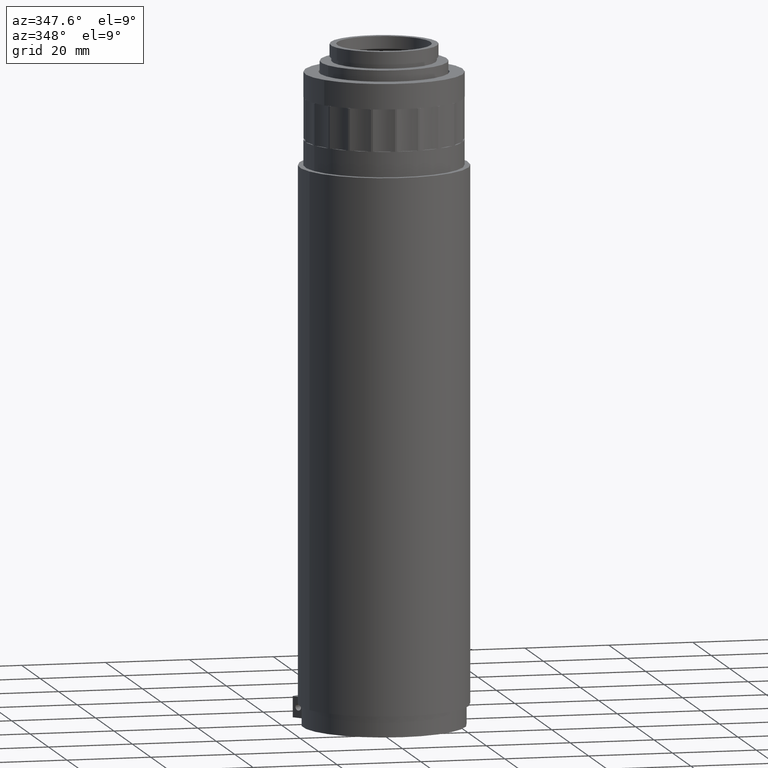
[diagram: clean part render]
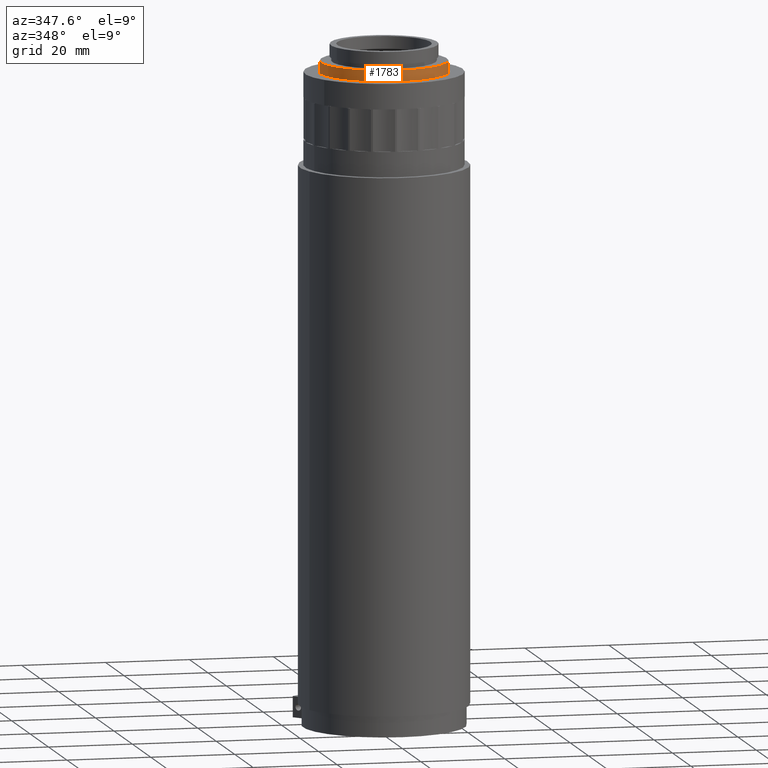
[diagram: same view with one face highlighted and labeled with its STEP entity id]
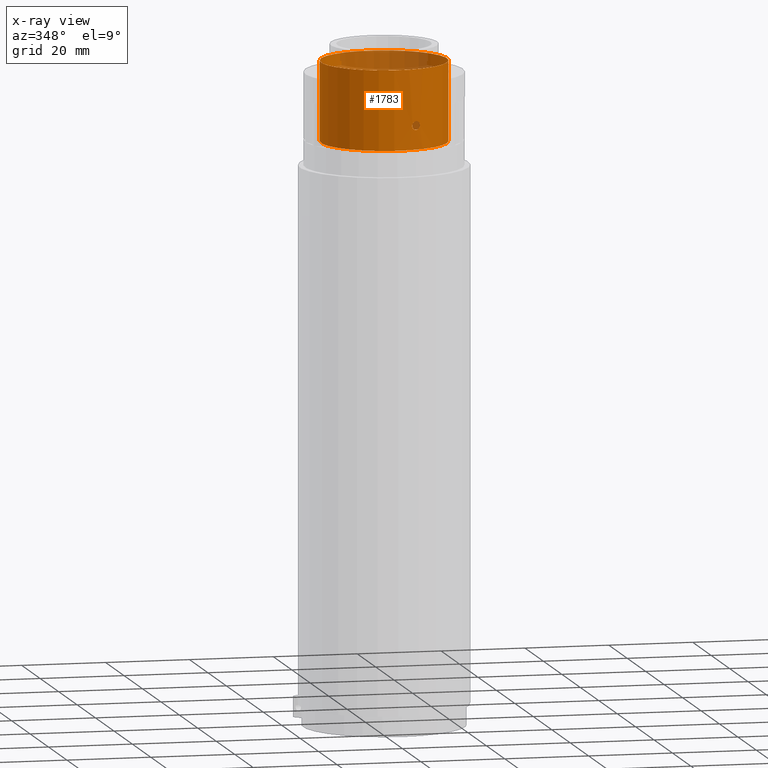
[diagram: x-ray of the same camera — body ghosted, the highlighted face saturated]
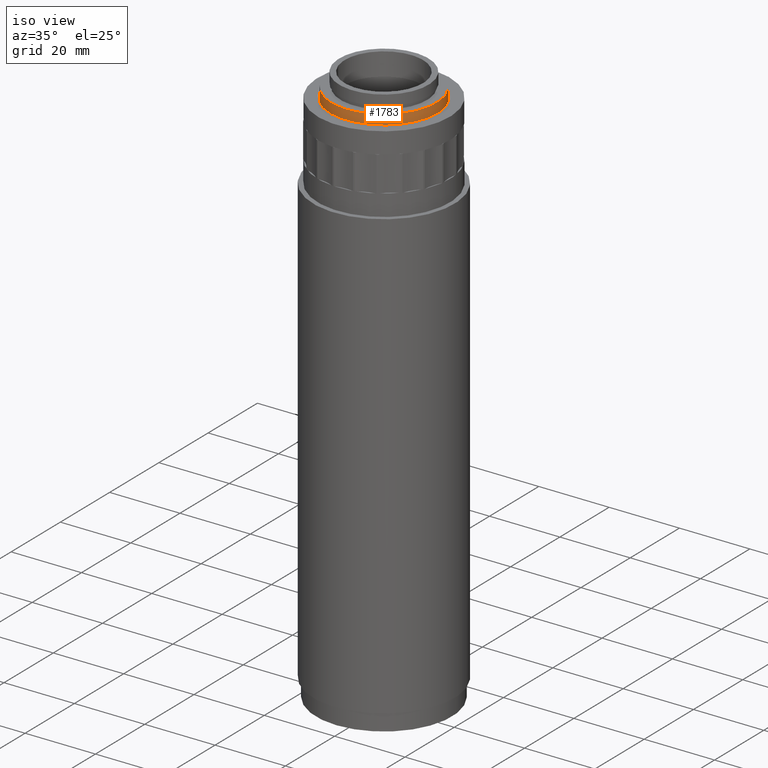
[diagram: same view with one face highlighted and labeled with its STEP entity id]
A machine part, auxiliary view. The second image highlights one B-rep face of the part: STEP entity #1783.
The next image is the same camera in x-ray: the body ghosted, the highlighted face saturated — about 13% of this face is hidden behind the body in this view.
A second angle (iso view) of the same face is appended — the face is thin or edge-on in the first view.
In plain terms, the highlighted cylindrical surface (bore or boss wall) has radius 15 mm, axis along (-0, -0, -1).
Its self-contained STEP definition (entity closure, byte-faithful):
#7 = CARTESIAN_POINT ( 'NONE',  ( 3.909661357517555391, -14.49827136340189426, 334.6732764564466152 ) ) ;
#100 = CARTESIAN_POINT ( 'NONE',  ( 3.526474716494871764, -14.59567947333768245, 333.7184944103898943 ) ) ;
#192 = CARTESIAN_POINT ( 'NONE',  ( -5.068030328922657368, 14.10043221929884538, 333.6903391237515848 ) ) ;
#197 = EDGE_LOOP ( 'NONE', ( #2178 ) ) ;
#216 = CARTESIAN_POINT ( 'NONE',  ( -3.890980354003833241, 14.47012302240885262, 333.6887907778898921 ) ) ;
#298 = EDGE_CURVE ( 'NONE', #1880, #1880, #4727, .T. ) ;
#302 = DIRECTION ( 'NONE',  ( 2.775557561562895049E-17, 4.163336342344347504E-17, 1.000000000000000000 ) ) ;
#309 = CARTESIAN_POINT ( 'NONE',  ( 3.652589807914333964, -14.56479638515088126, 334.3705597336411302 ) ) ;
#388 = CARTESIAN_POINT ( 'NONE',  ( 5.456986748210184146, -13.99012056470456145, 334.1226038592276950 ) ) ;
#624 = B_SPLINE_CURVE_WITH_KNOTS ( 'NONE', 3,
 ( #4258, #3131, #4998, #309, #5045, #7, #4964, #753, #1545, #1578, #1501, #1882, #776, #2339, #3893, #388, #4681, #1958, #1187, #3554, #4329, #4778, #3152, #3206, #1259, #3623, #893, #2082, #3967, #3990, #4798, #4040, #100, #3577 ),
 .UNSPECIFIED., .T., .F.,
 ( 4, 2, 2, 2, 2, 2, 2, 2, 2, 2, 2, 2, 2, 2, 2, 2, 4 ),
 ( 0.000000000000000000, 0.0004006088618720297424, 0.0008012177237440594848, 0.001201826585616089281, 0.001602435447488118970, 0.002003044309360148875, 0.002403653171232178563, 0.002804262033104208251, 0.003204870894976237939, 0.003605479756848268061, 0.004006088618720297749, 0.004406697480592327437, 0.004807306342464357125, 0.005207915204336386814, 0.005608524066208416502, 0.006009132928080447057, 0.006409741789952477613 ),
 .UNSPECIFIED. ) ;
#753 = CARTESIAN_POINT ( 'NONE',  ( 4.257251602259781720, -14.40045225640269422, 334.8519097482238180 ) ) ;
#776 = CARTESIAN_POINT ( 'NONE',  ( 5.110407963878091486, -14.12047043598308349, 334.6748553728641582 ) ) ;
#796 = VERTEX_POINT ( 'NONE', #2808 ) ;
#893 = CARTESIAN_POINT ( 'NONE',  ( 4.259118296835461948, -14.39990822333502862, 332.8553725564905790 ) ) ;
#958 = DIRECTION ( 'NONE',  ( -0.9538784807491921258, -0.3001930111838268522, 0.000000000000000000 ) ) ;
#989 = CARTESIAN_POINT ( 'NONE',  ( -5.008915526775009397, 14.12156946034227545, 333.5389767987732625 ) ) ;
#1062 = EDGE_LOOP ( 'NONE', ( #3883 ) ) ;
#1066 = EDGE_CURVE ( 'NONE', #4256, #4256, #624, .T. ) ;
#1092 = ORIENTED_EDGE ( 'NONE', *, *, #2102, .T. ) ;
#1187 = CARTESIAN_POINT ( 'NONE',  ( 5.457045173868232624, -13.99009756967506668, 333.5855723513711837 ) ) ;
#1259 = CARTESIAN_POINT ( 'NONE',  ( 4.642951974131425352, -14.28106582957735959, 332.8290489926608871 ) ) ;
#1275 = EDGE_LOOP ( 'NONE', ( #1092 ) ) ;
#1501 = CARTESIAN_POINT ( 'NONE',  ( 4.769210616647427514, -14.23937818011892986, 334.8525402291342630 ) ) ;
#1545 = CARTESIAN_POINT ( 'NONE',  ( 4.386495023876787691, -14.36177483568512336, 334.8788638511094291 ) ) ;
#1564 = CARTESIAN_POINT ( 'NONE',  ( -5.083328454940225782, 14.09488175842909996, 333.8539564219370845 ) ) ;
#1573 = FACE_BOUND ( 'NONE', #3856, .T. ) ;
#1578 = CARTESIAN_POINT ( 'NONE',  ( 4.641605780907718248, -14.28150271514785707, 334.8790485041372449 ) ) ;
#1735 = DIRECTION ( 'NONE',  ( -0.9538784807491921258, -0.3001930111838268522, 0.000000000000000000 ) ) ;
#1783 = ADVANCED_FACE ( 'NONE', ( #3476, #2334, #3888, #1573 ), #3126, .T. ) ;
#1842 = CARTESIAN_POINT ( 'NONE',  ( -3.906700101530142799, 14.46591192082504307, 334.0175741048352052 ) ) ;
#1880 = VERTEX_POINT ( 'NONE', #3841 ) ;
#1882 = CARTESIAN_POINT ( 'NONE',  ( 5.004047096209767176, -14.15867901700148757, 334.7499520117006000 ) ) ;
#1948 = CARTESIAN_POINT ( 'NONE',  ( -4.800036744286991564, 14.19448035052534607, 334.4127954334181823 ) ) ;
#1958 = CARTESIAN_POINT ( 'NONE',  ( 5.481925375782825682, -13.98028388901929198, 333.7184927704054758 ) ) ;
#2082 = CARTESIAN_POINT ( 'NONE',  ( 4.020390999550230937, -14.46824329510671525, 332.9579605431426899 ) ) ;
#2097 = CARTESIAN_POINT ( 'NONE',  ( 0.01183030213290291698, -0.01324913266420879240, 313.6820463095775153 ) ) ;
#2102 = EDGE_CURVE ( 'NONE', #4203, #4203, #2694, .T. ) ;
#2178 = ORIENTED_EDGE ( 'NONE', *, *, #4465, .T. ) ;
#2228 = CARTESIAN_POINT ( 'NONE',  ( -3.890980354003704456, 14.47012302240888104, 333.9365392439603966 ) ) ;
#2253 = CARTESIAN_POINT ( 'NONE',  ( 0.01183030213290331770, -0.01324913266420818872, 328.1539564219370959 ) ) ;
#2310 = DIRECTION ( 'NONE',  ( -0.9538784807491921258, -0.3001930111838268522, 0.000000000000000000 ) ) ;
#2334 = FACE_OUTER_BOUND ( 'NONE', #197, .T. ) ;
#2339 = CARTESIAN_POINT ( 'NONE',  ( 5.290273083046003855, -14.05416181248268614, 334.4836511539443222 ) ) ;
#2467 = DIRECTION ( 'NONE',  ( -2.775557561562895049E-17, -4.163336342344347504E-17, -1.000000000000000000 ) ) ;
#2546 = CARTESIAN_POINT ( 'NONE',  ( -4.965142266347805311, 14.13712437712819536, 333.4696546640838051 ) ) ;
#2694 = B_SPLINE_CURVE_WITH_KNOTS ( 'NONE', 3,
 ( #3777, #3421, #192, #989, #2546, #3341, #4120, #3718, #4167, #4904, #216, #2228, #1842, #2962, #4521, #3391, #4316, #3903, #1948, #4623, #3523, #1564 ),
 .UNSPECIFIED., .T., .F.,
 ( 4, 2, 2, 2, 2, 2, 2, 2, 2, 2, 4 ),
 ( 0.000000000000000000, 0.0002442300969877879294, 0.0004884601939755758588, 0.0009769203879512709798, 0.001465380581926966101, 0.001953840775902661222, 0.002198070872890426925, 0.002442300969878192195, 0.002930761163853724035, 0.003419221357829255875, 0.003907681551804788149 ),
 .UNSPECIFIED. ) ;
#2808 = CARTESIAN_POINT ( 'NONE',  ( -14.29634690910497596, -4.516144300421610858, 347.1539564219371528 ) ) ;
#2828 = CARTESIAN_POINT ( 'NONE',  ( 0.01183030213290384505, -0.01324913266420739769, 347.1539564219371528 ) ) ;
#2845 = AXIS2_PLACEMENT_3D ( 'NONE', #2253, #302, #2310 ) ;
#2962 = CARTESIAN_POINT ( 'NONE',  ( -3.967265791299517286, 14.44938477740012672, 334.1689363122456484 ) ) ;
#2993 = CARTESIAN_POINT ( 'NONE',  ( -5.083328454940224894, 14.09488175842909286, 333.8539564219370845 ) ) ;
#3030 = AXIS2_PLACEMENT_3D ( 'NONE', #2097, #3290, #958 ) ;
#3126 = CYLINDRICAL_SURFACE ( 'NONE', #3030, 15.00000000000000000 ) ;
#3131 = CARTESIAN_POINT ( 'NONE',  ( 3.526474716494755857, -14.59567947333770910, 333.9894184334834222 ) ) ;
#3152 = CARTESIAN_POINT ( 'NONE',  ( 5.004358315463268703, -14.15856212837356942, 332.9582723313444603 ) ) ;
#3206 = CARTESIAN_POINT ( 'NONE',  ( 4.771051871396942090, -14.23875530169469350, 332.8560030346336021 ) ) ;
#3289 = ORIENTED_EDGE ( 'NONE', *, *, #1066, .T. ) ;
#3290 = DIRECTION ( 'NONE',  ( -2.775557561562895049E-17, -4.163336342344347504E-17, -1.000000000000000000 ) ) ;
#3341 = CARTESIAN_POINT ( 'NONE',  ( -4.801699178088341569, 14.19390538888643860, 333.2967107982269681 ) ) ;
#3391 = CARTESIAN_POINT ( 'NONE',  ( -4.178561624376579076, 14.39001164936252941, 334.4112021103180155 ) ) ;
#3421 = CARTESIAN_POINT ( 'NONE',  ( -5.083328454940224894, 14.09488175842909641, 333.7713735603967962 ) ) ;
#3476 = FACE_OUTER_BOUND ( 'NONE', #1062, .T. ) ;
#3523 = CARTESIAN_POINT ( 'NONE',  ( -5.083328454940227559, 14.09488175842910174, 334.0191221450176613 ) ) ;
#3554 = CARTESIAN_POINT ( 'NONE',  ( 5.360853264890718783, -14.02719256677405113, 333.3373520772044003 ) ) ;
#3577 = CARTESIAN_POINT ( 'NONE',  ( 3.526474716494814032, -14.59567947333769489, 333.8539564219366866 ) ) ;
#3623 = CARTESIAN_POINT ( 'NONE',  ( 4.387849080600613405, -14.36136193149827278, 332.8288643398410045 ) ) ;
#3718 = CARTESIAN_POINT ( 'NONE',  ( -4.335950146802633576, 14.34374873733090894, 333.2288455111324197 ) ) ;
#3777 = CARTESIAN_POINT ( 'NONE',  ( -5.083328454940225782, 14.09488175842909996, 333.8539564219370845 ) ) ;
#3841 = CARTESIAN_POINT ( 'NONE',  ( -14.29634690910497774, -4.516144300421611746, 328.1539564219370959 ) ) ;
#3856 = EDGE_LOOP ( 'NONE', ( #3289 ) ) ;
#3883 = ORIENTED_EDGE ( 'NONE', *, *, #298, .T. ) ;
#3888 = FACE_BOUND ( 'NONE', #1275, .T. ) ;
#3893 = CARTESIAN_POINT ( 'NONE',  ( 5.360676596397111027, -14.02726023121764598, 334.3709037778979223 ) ) ;
#3903 = CARTESIAN_POINT ( 'NONE',  ( -4.646182284579833954, 14.24611625951843230, 334.4790673326888282 ) ) ;
#3967 = CARTESIAN_POINT ( 'NONE',  ( 3.911317922706701200, -14.49783346786520610, 333.0330570313784051 ) ) ;
#3990 = CARTESIAN_POINT ( 'NONE',  ( 3.725895633862503331, -14.54648365833682533, 333.2242608350385353 ) ) ;
#4040 = CARTESIAN_POINT ( 'NONE',  ( 3.552552664707774088, -14.58946088034094046, 333.5853075344221566 ) ) ;
#4120 = CARTESIAN_POINT ( 'NONE',  ( -4.646991746947585433, 14.24585181326475158, 333.2290676227189010 ) ) ;
#4167 = CARTESIAN_POINT ( 'NONE',  ( -4.180253425053178873, 14.38953100065107549, 333.2951174705023050 ) ) ;
#4203 = VERTEX_POINT ( 'NONE', #2993 ) ;
#4256 = VERTEX_POINT ( 'NONE', #4995 ) ;
#4258 = CARTESIAN_POINT ( 'NONE',  ( 3.526474716494814032, -14.59567947333769489, 333.8539564219366866 ) ) ;
#4316 = CARTESIAN_POINT ( 'NONE',  ( -4.335135276913629987, 14.34399548113042755, 334.4788452212082461 ) ) ;
#4329 = CARTESIAN_POINT ( 'NONE',  ( 5.289601704683272843, -14.05440595745520227, 333.2236791818627353 ) ) ;
#4465 = EDGE_CURVE ( 'NONE', #796, #796, #4978, .T. ) ;
#4521 = CARTESIAN_POINT ( 'NONE',  ( -4.012057962325084937, 14.43706746069676861, 334.2382583957215161 ) ) ;
#4623 = CARTESIAN_POINT ( 'NONE',  ( -5.020695917704345312, 14.11782730851910195, 334.1796404913271772 ) ) ;
#4681 = CARTESIAN_POINT ( 'NONE',  ( 5.481925828275421075, -13.98028371180360629, 333.9894164049633218 ) ) ;
#4727 = CIRCLE ( 'NONE', #2845, 15.00000000000000000 ) ;
#4778 = CARTESIAN_POINT ( 'NONE',  ( 5.112015592575559708, -14.11988111762453180, 333.0346359423467675 ) ) ;
#4798 = CARTESIAN_POINT ( 'NONE',  ( 3.652774611083733802, -14.56475037140467599, 333.3370079945777320 ) ) ;
#4904 = CARTESIAN_POINT ( 'NONE',  ( -3.955465152175494659, 14.45306374666284377, 333.5282726272031937 ) ) ;
#4964 = CARTESIAN_POINT ( 'NONE',  ( 4.020067891980255936, -14.46832599730302071, 334.7496402273463900 ) ) ;
#4978 = CIRCLE ( 'NONE', #5059, 15.00000000000000000 ) ;
#4995 = CARTESIAN_POINT ( 'NONE',  ( 3.526474716494813144, -14.59567947333769311, 333.8539564219366866 ) ) ;
#4998 = CARTESIAN_POINT ( 'NONE',  ( 3.552490790516587893, -14.58947568572961906, 334.1223390047171620 ) ) ;
#5045 = CARTESIAN_POINT ( 'NONE',  ( 3.726584516641720857, -14.54629964131776276, 334.4842328271996621 ) ) ;
#5059 = AXIS2_PLACEMENT_3D ( 'NONE', #2828, #2467, #1735 ) ;